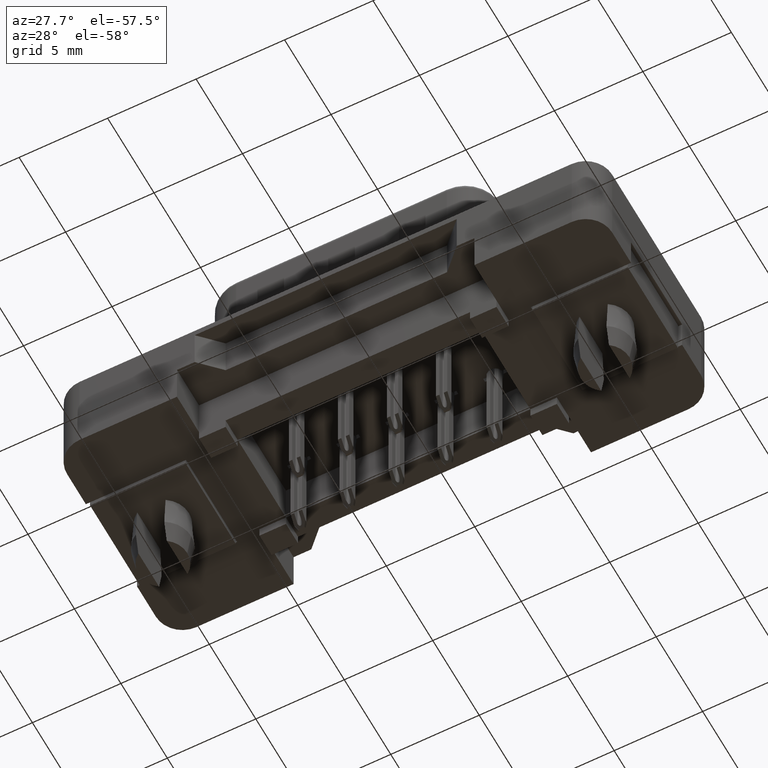
[diagram: clean part render]
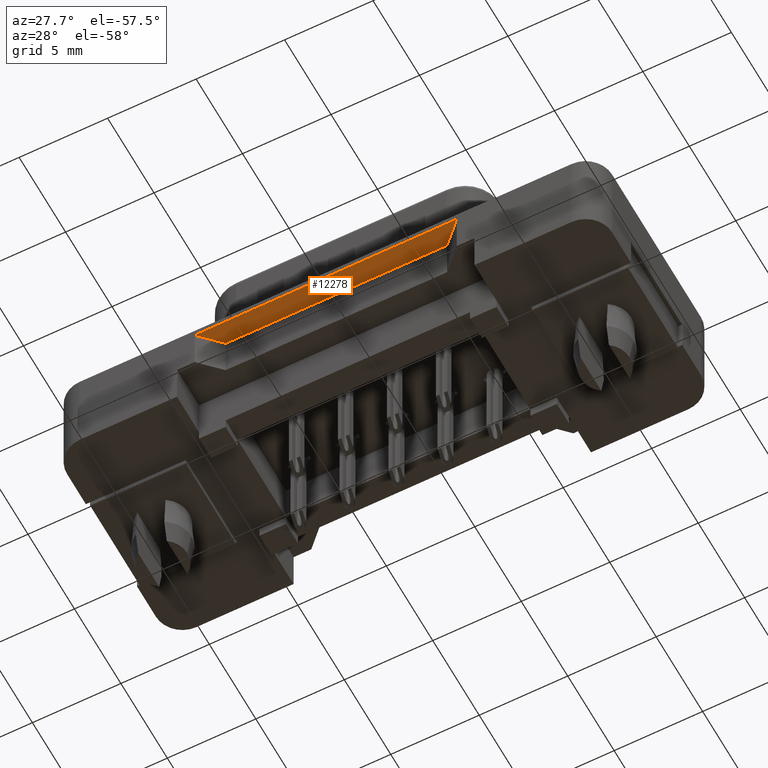
[diagram: same view with one face highlighted and labeled with its STEP entity id]
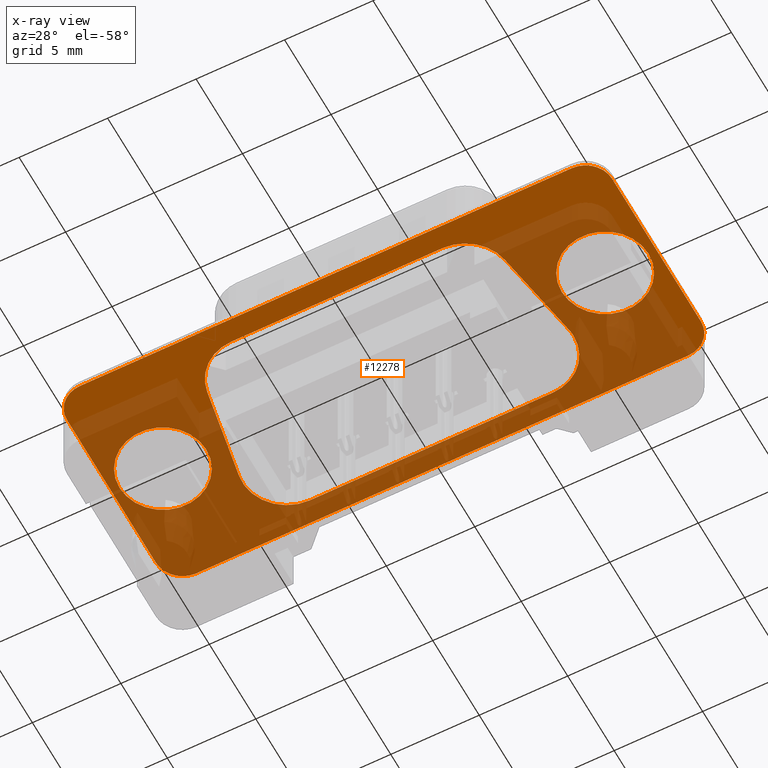
[diagram: x-ray of the same camera — body ghosted, the highlighted face saturated]
A machine part, auxiliary view. The second image highlights one B-rep face of the part: STEP entity #12278.
The next image is the same camera in x-ray: the body ghosted, the highlighted face saturated — about 65% of this face is hidden behind the body in this view.
In plain terms, the highlighted planar face has unit normal (0, 0, 1).
Its self-contained STEP definition (entity closure, byte-faithful):
#187 = CARTESIAN_POINT ( 'NONE',  ( 24.98999999999999844, 4.590588526603852614E-15, 0.0000000000000000000 ) ) ;
#409 = DIRECTION ( 'NONE',  ( -0.0000000000000000000, -0.0000000000000000000, -1.000000000000000000 ) ) ;
#472 = CARTESIAN_POINT ( 'NONE',  ( 4.082827837925122161, -3.014120444167309287, 0.0000000000000000000 ) ) ;
#613 = FACE_BOUND ( 'NONE', #14356, .T. ) ;
#693 = AXIS2_PLACEMENT_3D ( 'NONE', #4037, #14610, #8539 ) ;
#861 = EDGE_LOOP ( 'NONE', ( #11480, #11374, #7420, #8845, #9576, #10341, #2004, #8670, #2510 ) ) ;
#1082 = LINE ( 'NONE', #10122, #11358 ) ;
#1160 = LINE ( 'NONE', #6865, #11142 ) ;
#1355 = CARTESIAN_POINT ( 'NONE',  ( 0.0000000000000000000, 0.0000000000000000000, 0.0000000000000000000 ) ) ;
#1411 = ORIENTED_EDGE ( 'NONE', *, *, #10363, .F. ) ;
#1473 = CARTESIAN_POINT ( 'NONE',  ( 26.39499999999999602, 4.775000000000003908, 0.0000000000000000000 ) ) ;
#1515 = ORIENTED_EDGE ( 'NONE', *, *, #13408, .F. ) ;
#1682 = AXIS2_PLACEMENT_3D ( 'NONE', #12619, #10327, #10266 ) ;
#1754 = CARTESIAN_POINT ( 'NONE',  ( 26.39499999999999602, 4.775000000000003908, 0.0000000000000000000 ) ) ;
#1846 = CIRCLE ( 'NONE', #3545, 1.500000000000001332 ) ;
#1873 = AXIS2_PLACEMENT_3D ( 'NONE', #1754, #13165, #14529 ) ;
#1883 = CARTESIAN_POINT ( 'NONE',  ( 27.89499999999999602, 4.775000000000003908, 0.0000000000000000000 ) ) ;
#1905 = VERTEX_POINT ( 'NONE', #9633 ) ;
#1934 = VERTEX_POINT ( 'NONE', #2403 ) ;
#1974 = VECTOR ( 'NONE', #6858, 1000.000000000000000 ) ;
#1986 = ORIENTED_EDGE ( 'NONE', *, *, #10407, .F. ) ;
#2004 = ORIENTED_EDGE ( 'NONE', *, *, #12513, .F. ) ;
#2128 = DIRECTION ( 'NONE',  ( -0.1736481776669227262, -0.9848077530122094636, 0.0000000000000000000 ) ) ;
#2260 = VERTEX_POINT ( 'NONE', #2302 ) ;
#2282 = CARTESIAN_POINT ( 'NONE',  ( 26.39499999999999602, -5.079999999999994742, 0.0000000000000000000 ) ) ;
#2302 = CARTESIAN_POINT ( 'NONE',  ( 21.85499999999999687, 2.580000000000001403, -2.168404344971008868E-16 ) ) ;
#2362 = DIRECTION ( 'NONE',  ( -1.000000000000000000, -0.0000000000000000000, 0.0000000000000000000 ) ) ;
#2403 = CARTESIAN_POINT ( 'NONE',  ( 6.544847220455646486, -5.080000000000001847, 0.0000000000000000000 ) ) ;
#2501 = ORIENTED_EDGE ( 'NONE', *, *, #8855, .F. ) ;
#2510 = ORIENTED_EDGE ( 'NONE', *, *, #4208, .F. ) ;
#2599 = CARTESIAN_POINT ( 'NONE',  ( 0.0000000000000000000, 0.0000000000000000000, 0.0000000000000000000 ) ) ;
#2667 = DIRECTION ( 'NONE',  ( 1.000000000000000000, 0.0000000000000000000, 0.0000000000000000000 ) ) ;
#3016 = DIRECTION ( 'NONE',  ( 1.000000000000000000, 0.0000000000000000000, 0.0000000000000000000 ) ) ;
#3079 = ORIENTED_EDGE ( 'NONE', *, *, #8609, .F. ) ;
#3269 = VERTEX_POINT ( 'NONE', #13524 ) ;
#3390 = DIRECTION ( 'NONE',  ( 1.000000000000000000, 0.0000000000000000000, 0.0000000000000000000 ) ) ;
#3435 = DIRECTION ( 'NONE',  ( 1.000000000000000000, 0.0000000000000000000, 0.0000000000000000000 ) ) ;
#3545 = AXIS2_PLACEMENT_3D ( 'NONE', #11600, #5980, #10624 ) ;
#3573 = CIRCLE ( 'NONE', #9167, 1.500000000000001332 ) ;
#3609 = CIRCLE ( 'NONE', #13571, 2.449999999999999734 ) ;
#3854 = CARTESIAN_POINT ( 'NONE',  ( 19.35499999999999687, 5.080000000000000959, 0.0000000000000000000 ) ) ;
#3941 = ORIENTED_EDGE ( 'NONE', *, *, #4190, .F. ) ;
#4037 = CARTESIAN_POINT ( 'NONE',  ( -1.404999999999996474, 4.775000000000000355, 0.0000000000000000000 ) ) ;
#4134 = VECTOR ( 'NONE', #9828, 1000.000000000000000 ) ;
#4190 = EDGE_CURVE ( 'NONE', #12243, #7204, #6703, .T. ) ;
#4208 = EDGE_CURVE ( 'NONE', #11236, #7608, #5634, .T. ) ;
#4337 = CIRCLE ( 'NONE', #11844, 2.499999999999998668 ) ;
#4354 = DIRECTION ( 'NONE',  ( -0.0000000000000000000, -0.0000000000000000000, -1.000000000000000000 ) ) ;
#4358 = CIRCLE ( 'NONE', #1682, 1.500000000000001332 ) ;
#4592 = ORIENTED_EDGE ( 'NONE', *, *, #11075, .F. ) ;
#4844 = CARTESIAN_POINT ( 'NONE',  ( 2.449999999999999734, 0.0000000000000000000, 0.0000000000000000000 ) ) ;
#5254 = CARTESIAN_POINT ( 'NONE',  ( 26.39500000000000313, -6.274999999999995914, 0.0000000000000000000 ) ) ;
#5299 = CARTESIAN_POINT ( 'NONE',  ( 4.082827837925122161, -3.014120444167308843, -4.336808689942017736E-16 ) ) ;
#5484 = CARTESIAN_POINT ( 'NONE',  ( 21.81701938253052120, 2.145879555832693519, -4.336808689942017736E-16 ) ) ;
#5567 = DIRECTION ( 'NONE',  ( 1.000000000000000000, 0.0000000000000000000, 0.0000000000000000000 ) ) ;
#5634 = CIRCLE ( 'NONE', #11925, 2.500000000000001332 ) ;
#5686 = CARTESIAN_POINT ( 'NONE',  ( 19.35499999999999687, 2.580000000000001403, -2.168404344971008868E-16 ) ) ;
#5783 = CARTESIAN_POINT ( 'NONE',  ( 24.98999999999999844, 4.590588526603852614E-15, 0.0000000000000000000 ) ) ;
#5825 = CIRCLE ( 'NONE', #8985, 2.449999999999993960 ) ;
#5834 = CIRCLE ( 'NONE', #8266, 2.449999999999999734 ) ;
#5980 = DIRECTION ( 'NONE',  ( 0.0000000000000000000, 0.0000000000000000000, 1.000000000000000000 ) ) ;
#6191 = VERTEX_POINT ( 'NONE', #7733 ) ;
#6271 = CARTESIAN_POINT ( 'NONE',  ( 27.43999999999999062, 4.590588526603852614E-15, 0.0000000000000000000 ) ) ;
#6438 = LINE ( 'NONE', #5299, #7211 ) ;
#6479 = VERTEX_POINT ( 'NONE', #3854 ) ;
#6611 = DIRECTION ( 'NONE',  ( -0.0000000000000000000, -0.0000000000000000000, -1.000000000000000000 ) ) ;
#6625 = CARTESIAN_POINT ( 'NONE',  ( 18.44515277954435462, -2.579999999999997407, -2.168404344971008868E-16 ) ) ;
#6637 = EDGE_LOOP ( 'NONE', ( #14480, #3079, #1411, #13857, #4592, #3941, #2501, #11401 ) ) ;
#6687 = CARTESIAN_POINT ( 'NONE',  ( 3.172980617469477238, 2.145879555832689523, 0.0000000000000000000 ) ) ;
#6688 = EDGE_CURVE ( 'NONE', #7576, #12013, #3573, .T. ) ;
#6703 = LINE ( 'NONE', #11328, #1974 ) ;
#6710 = CARTESIAN_POINT ( 'NONE',  ( 26.39499999999999602, 6.275000000000004796, 0.0000000000000000000 ) ) ;
#6858 = DIRECTION ( 'NONE',  ( -0.0000000000000000000, -1.000000000000000000, -0.0000000000000000000 ) ) ;
#6865 = CARTESIAN_POINT ( 'NONE',  ( 26.39499999999999602, 6.275000000000004796, 0.0000000000000000000 ) ) ;
#6996 = CIRCLE ( 'NONE', #15002, 2.499999999999998668 ) ;
#7038 = VERTEX_POINT ( 'NONE', #6271 ) ;
#7081 = EDGE_CURVE ( 'NONE', #6191, #13065, #4337, .T. ) ;
#7204 = VERTEX_POINT ( 'NONE', #11399 ) ;
#7211 = VECTOR ( 'NONE', #13581, 999.9999999999998863 ) ;
#7246 = DIRECTION ( 'NONE',  ( -0.0000000000000000000, -0.0000000000000000000, -1.000000000000000000 ) ) ;
#7420 = ORIENTED_EDGE ( 'NONE', *, *, #9998, .F. ) ;
#7576 = VERTEX_POINT ( 'NONE', #1883 ) ;
#7608 = VERTEX_POINT ( 'NONE', #11006 ) ;
#7733 = CARTESIAN_POINT ( 'NONE',  ( 20.90717216207487894, -3.014120444167304846, 0.0000000000000000000 ) ) ;
#7775 = CARTESIAN_POINT ( 'NONE',  ( -2.449999999999999734, 3.000384657911015370E-16, 0.0000000000000000000 ) ) ;
#7888 = VERTEX_POINT ( 'NONE', #4844 ) ;
#8014 = EDGE_CURVE ( 'NONE', #13208, #11236, #6438, .T. ) ;
#8190 = CARTESIAN_POINT ( 'NONE',  ( 22.54000000000000625, 4.890626992394954200E-15, 0.0000000000000000000 ) ) ;
#8227 = VECTOR ( 'NONE', #2362, 1000.000000000000000 ) ;
#8266 = AXIS2_PLACEMENT_3D ( 'NONE', #2599, #7246, #11878 ) ;
#8539 = DIRECTION ( 'NONE',  ( 1.000000000000000000, 0.0000000000000000000, 0.0000000000000000000 ) ) ;
#8604 = VERTEX_POINT ( 'NONE', #7775 ) ;
#8609 = EDGE_CURVE ( 'NONE', #11725, #7576, #1082, .T. ) ;
#8670 = ORIENTED_EDGE ( 'NONE', *, *, #14790, .F. ) ;
#8675 = CARTESIAN_POINT ( 'NONE',  ( -2.904999999999999805, 4.775000000000000355, 0.0000000000000000000 ) ) ;
#8677 = LINE ( 'NONE', #5254, #8712 ) ;
#8712 = VECTOR ( 'NONE', #10882, 1000.000000000000000 ) ;
#8759 = CARTESIAN_POINT ( 'NONE',  ( 19.35499999999999687, 2.580000000000001403, -2.168404344971008868E-16 ) ) ;
#8808 = VERTEX_POINT ( 'NONE', #9351 ) ;
#8845 = ORIENTED_EDGE ( 'NONE', *, *, #7081, .F. ) ;
#8855 = EDGE_CURVE ( 'NONE', #1905, #12243, #10141, .T. ) ;
#8985 = AXIS2_PLACEMENT_3D ( 'NONE', #187, #14401, #13119 ) ;
#9070 = DIRECTION ( 'NONE',  ( -1.000000000000000000, -1.248002500702739293E-16, 0.0000000000000000000 ) ) ;
#9166 = CIRCLE ( 'NONE', #13056, 2.499999999999998668 ) ;
#9167 = AXIS2_PLACEMENT_3D ( 'NONE', #1473, #13863, #3435 ) ;
#9187 = CIRCLE ( 'NONE', #15016, 2.500000000000000444 ) ;
#9241 = CARTESIAN_POINT ( 'NONE',  ( 26.39500000000000313, -6.274999999999995914, 0.0000000000000000000 ) ) ;
#9351 = CARTESIAN_POINT ( 'NONE',  ( -1.404999999999996252, -6.274999999999998579, 0.0000000000000000000 ) ) ;
#9526 = ORIENTED_EDGE ( 'NONE', *, *, #14802, .F. ) ;
#9576 = ORIENTED_EDGE ( 'NONE', *, *, #10482, .F. ) ;
#9603 = VECTOR ( 'NONE', #2128, 999.9999999999998863 ) ;
#9633 = CARTESIAN_POINT ( 'NONE',  ( -1.404999999999996696, 6.275000000000003020, 0.0000000000000000000 ) ) ;
#9805 = DIRECTION ( 'NONE',  ( -0.0000000000000000000, -0.0000000000000000000, -1.000000000000000000 ) ) ;
#9828 = DIRECTION ( 'NONE',  ( 1.000000000000000000, 0.0000000000000000000, -0.0000000000000000000 ) ) ;
#9877 = FACE_BOUND ( 'NONE', #861, .T. ) ;
#9950 = EDGE_CURVE ( 'NONE', #12013, #1905, #1160, .T. ) ;
#9998 = EDGE_CURVE ( 'NONE', #13065, #1934, #14858, .T. ) ;
#10122 = CARTESIAN_POINT ( 'NONE',  ( 27.89500000000000313, -4.774999999999995026, 0.0000000000000000000 ) ) ;
#10141 = CIRCLE ( 'NONE', #693, 1.500000000000001776 ) ;
#10196 = LINE ( 'NONE', #5484, #9603 ) ;
#10266 = DIRECTION ( 'NONE',  ( 1.000000000000000000, 0.0000000000000000000, 0.0000000000000000000 ) ) ;
#10327 = DIRECTION ( 'NONE',  ( 0.0000000000000000000, 0.0000000000000000000, 1.000000000000000000 ) ) ;
#10341 = ORIENTED_EDGE ( 'NONE', *, *, #13214, .F. ) ;
#10363 = EDGE_CURVE ( 'NONE', #14718, #11725, #4358, .T. ) ;
#10406 = DIRECTION ( 'NONE',  ( 1.000000000000000000, 0.0000000000000000000, 0.0000000000000000000 ) ) ;
#10407 = EDGE_CURVE ( 'NONE', #11092, #7038, #12123, .T. ) ;
#10482 = EDGE_CURVE ( 'NONE', #3269, #6191, #10196, .T. ) ;
#10624 = DIRECTION ( 'NONE',  ( -1.000000000000000000, 0.0000000000000000000, 0.0000000000000000000 ) ) ;
#10734 = FACE_OUTER_BOUND ( 'NONE', #6637, .T. ) ;
#10736 = CARTESIAN_POINT ( 'NONE',  ( 18.44515277954435462, -5.079999999999994742, 0.0000000000000000000 ) ) ;
#10820 = DIRECTION ( 'NONE',  ( 1.000000000000000000, 8.673617379884040402E-16, 0.0000000000000000000 ) ) ;
#10882 = DIRECTION ( 'NONE',  ( 1.000000000000000000, 9.360018755270542231E-17, -0.0000000000000000000 ) ) ;
#11006 = CARTESIAN_POINT ( 'NONE',  ( 5.635000000000001563, 5.079999999999997407, 0.0000000000000000000 ) ) ;
#11075 = EDGE_CURVE ( 'NONE', #7204, #8808, #1846, .T. ) ;
#11092 = VERTEX_POINT ( 'NONE', #8190 ) ;
#11099 = EDGE_LOOP ( 'NONE', ( #1515, #9526 ) ) ;
#11142 = VECTOR ( 'NONE', #9070, 1000.000000000000000 ) ;
#11236 = VERTEX_POINT ( 'NONE', #6687 ) ;
#11322 = DIRECTION ( 'NONE',  ( -0.0000000000000000000, -0.0000000000000000000, -1.000000000000000000 ) ) ;
#11328 = CARTESIAN_POINT ( 'NONE',  ( -2.904999999999999805, -4.774999999999998579, 0.0000000000000000000 ) ) ;
#11358 = VECTOR ( 'NONE', #14853, 1000.000000000000000 ) ;
#11374 = ORIENTED_EDGE ( 'NONE', *, *, #13740, .F. ) ;
#11399 = CARTESIAN_POINT ( 'NONE',  ( -2.904999999999998028, -4.774999999999998579, 0.0000000000000000000 ) ) ;
#11401 = ORIENTED_EDGE ( 'NONE', *, *, #9950, .F. ) ;
#11480 = ORIENTED_EDGE ( 'NONE', *, *, #8014, .F. ) ;
#11600 = CARTESIAN_POINT ( 'NONE',  ( -1.404999999999996474, -4.774999999999998579, 0.0000000000000000000 ) ) ;
#11725 = VERTEX_POINT ( 'NONE', #11883 ) ;
#11844 = AXIS2_PLACEMENT_3D ( 'NONE', #6625, #409, #10820 ) ;
#11878 = DIRECTION ( 'NONE',  ( 1.000000000000000000, 0.0000000000000000000, 0.0000000000000000000 ) ) ;
#11883 = CARTESIAN_POINT ( 'NONE',  ( 27.89500000000000313, -4.774999999999995026, 0.0000000000000000000 ) ) ;
#11925 = AXIS2_PLACEMENT_3D ( 'NONE', #13767, #4354, #14911 ) ;
#12013 = VERTEX_POINT ( 'NONE', #6710 ) ;
#12123 = CIRCLE ( 'NONE', #15035, 2.449999999999993960 ) ;
#12126 = LINE ( 'NONE', #14182, #4134 ) ;
#12165 = PLANE ( 'NONE',  #1873 ) ;
#12243 = VERTEX_POINT ( 'NONE', #8675 ) ;
#12278 = ADVANCED_FACE ( 'NONE', ( #613, #9877, #10734, #13000 ), #12165, .F. ) ;
#12511 = CARTESIAN_POINT ( 'NONE',  ( 6.544847220455644710, -2.580000000000000515, -2.168404344971008868E-16 ) ) ;
#12513 = EDGE_CURVE ( 'NONE', #6479, #2260, #9166, .T. ) ;
#12619 = CARTESIAN_POINT ( 'NONE',  ( 26.39500000000000313, -4.774999999999995026, 0.0000000000000000000 ) ) ;
#13000 = FACE_BOUND ( 'NONE', #11099, .T. ) ;
#13056 = AXIS2_PLACEMENT_3D ( 'NONE', #5686, #13818, #3390 ) ;
#13065 = VERTEX_POINT ( 'NONE', #10736 ) ;
#13119 = DIRECTION ( 'NONE',  ( 1.000000000000000000, 0.0000000000000000000, 0.0000000000000000000 ) ) ;
#13165 = DIRECTION ( 'NONE',  ( 0.0000000000000000000, 0.0000000000000000000, 1.000000000000000000 ) ) ;
#13205 = EDGE_CURVE ( 'NONE', #8808, #14718, #8677, .T. ) ;
#13208 = VERTEX_POINT ( 'NONE', #472 ) ;
#13214 = EDGE_CURVE ( 'NONE', #2260, #3269, #6996, .T. ) ;
#13408 = EDGE_CURVE ( 'NONE', #7888, #8604, #3609, .T. ) ;
#13524 = CARTESIAN_POINT ( 'NONE',  ( 21.81701938253052120, 2.145879555832693075, -2.168404344971008868E-16 ) ) ;
#13571 = AXIS2_PLACEMENT_3D ( 'NONE', #1355, #13838, #10406 ) ;
#13581 = DIRECTION ( 'NONE',  ( -0.1736481776669233645, 0.9848077530122093526, -0.0000000000000000000 ) ) ;
#13740 = EDGE_CURVE ( 'NONE', #1934, #13208, #9187, .T. ) ;
#13767 = CARTESIAN_POINT ( 'NONE',  ( 5.635000000000001563, 2.579999999999997407, -2.168404344971008868E-16 ) ) ;
#13818 = DIRECTION ( 'NONE',  ( -0.0000000000000000000, -0.0000000000000000000, -1.000000000000000000 ) ) ;
#13838 = DIRECTION ( 'NONE',  ( -0.0000000000000000000, -0.0000000000000000000, -1.000000000000000000 ) ) ;
#13857 = ORIENTED_EDGE ( 'NONE', *, *, #13205, .F. ) ;
#13863 = DIRECTION ( 'NONE',  ( 0.0000000000000000000, 0.0000000000000000000, 1.000000000000000000 ) ) ;
#14182 = CARTESIAN_POINT ( 'NONE',  ( 26.39499999999999602, 5.079999999999997407, 0.0000000000000000000 ) ) ;
#14356 = EDGE_LOOP ( 'NONE', ( #14852, #1986 ) ) ;
#14369 = EDGE_CURVE ( 'NONE', #7038, #11092, #5825, .T. ) ;
#14401 = DIRECTION ( 'NONE',  ( -0.0000000000000000000, -0.0000000000000000000, -1.000000000000000000 ) ) ;
#14480 = ORIENTED_EDGE ( 'NONE', *, *, #6688, .F. ) ;
#14529 = DIRECTION ( 'NONE',  ( 1.000000000000000000, 0.0000000000000000000, -0.0000000000000000000 ) ) ;
#14610 = DIRECTION ( 'NONE',  ( 0.0000000000000000000, 0.0000000000000000000, 1.000000000000000000 ) ) ;
#14718 = VERTEX_POINT ( 'NONE', #9241 ) ;
#14790 = EDGE_CURVE ( 'NONE', #7608, #6479, #12126, .T. ) ;
#14802 = EDGE_CURVE ( 'NONE', #8604, #7888, #5834, .T. ) ;
#14852 = ORIENTED_EDGE ( 'NONE', *, *, #14369, .F. ) ;
#14853 = DIRECTION ( 'NONE',  ( -7.265857491002333524E-16, 1.000000000000000000, 0.0000000000000000000 ) ) ;
#14858 = LINE ( 'NONE', #2282, #8227 ) ;
#14911 = DIRECTION ( 'NONE',  ( 1.000000000000000000, -8.673617379884030542E-16, 0.0000000000000000000 ) ) ;
#15002 = AXIS2_PLACEMENT_3D ( 'NONE', #8759, #9805, #2667 ) ;
#15016 = AXIS2_PLACEMENT_3D ( 'NONE', #12511, #6611, #3016 ) ;
#15035 = AXIS2_PLACEMENT_3D ( 'NONE', #5783, #11322, #5567 ) ;